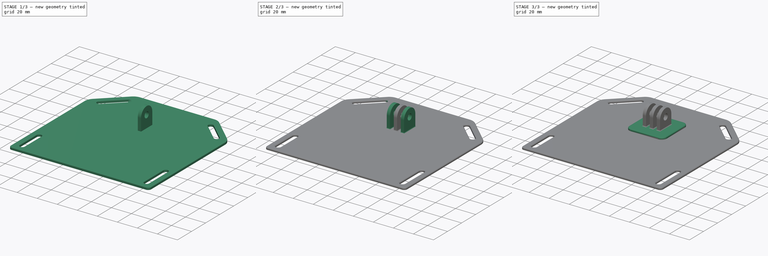
[diagram: build sequence overview — one tinted view per stage of 3, left to right]
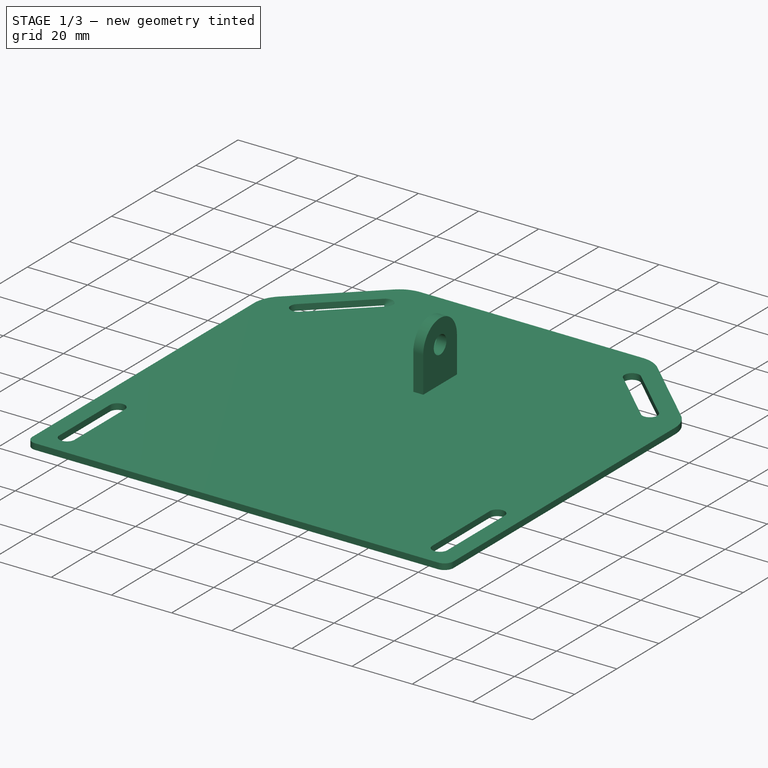
[diagram: stage 1 of 3 — iso view after this stage's code; geometry added in this stage tinted green]
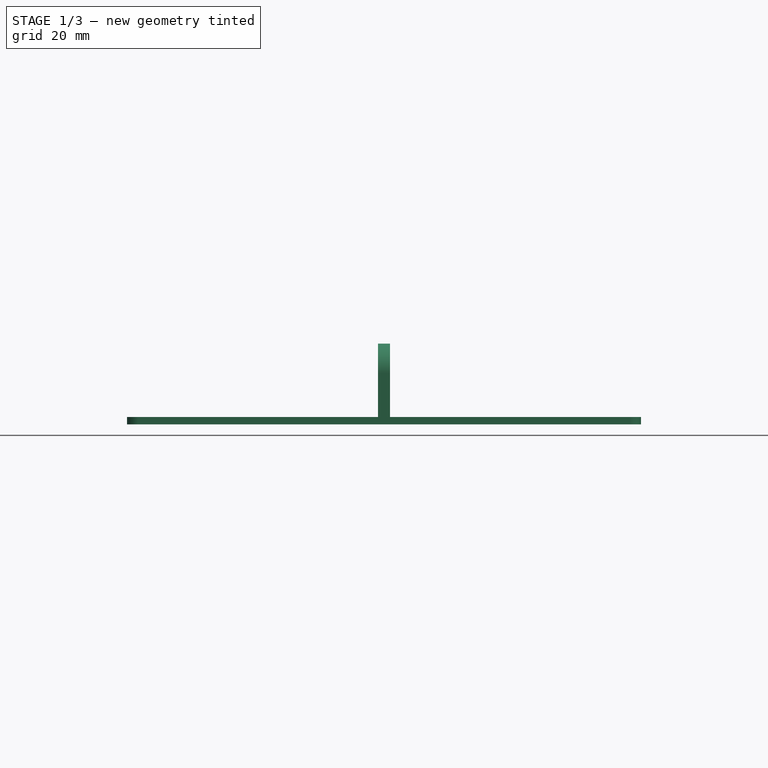
[diagram: stage 1 of 3 — front view after this stage's code; geometry added in this stage tinted green]
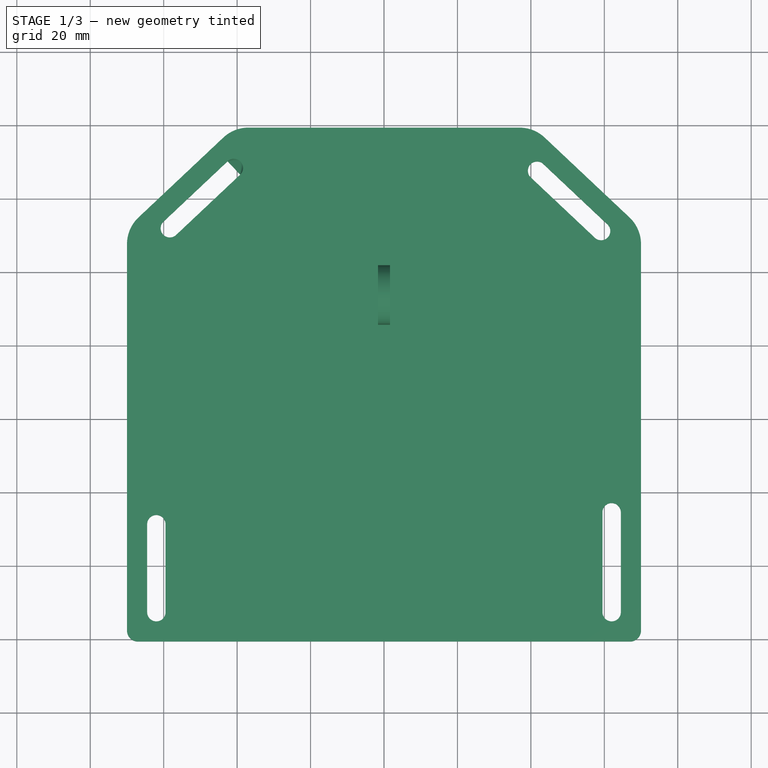
[diagram: stage 1 of 3 — top view after this stage's code; geometry added in this stage tinted green]
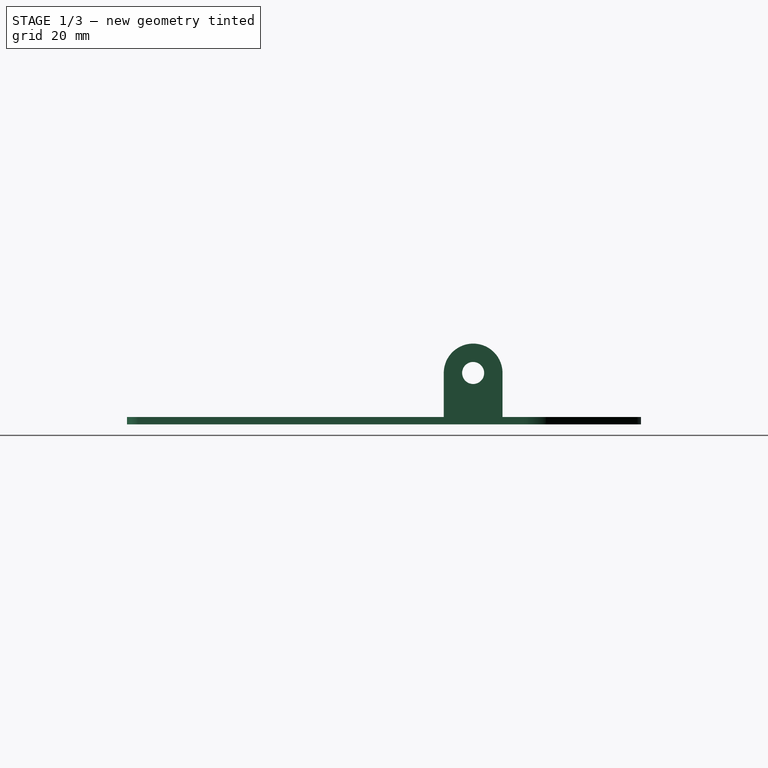
[diagram: stage 1 of 3 — right view after this stage's code; geometry added in this stage tinted green]
FCSTD DOCUMENT  (FreeCAD 0.20R25352 (Git))
Label: gopro simple chest plate
License: All rights reserved
LicenseURL: http://en.wikipedia.org/wiki/All_rights_reserved
objects: Sketcher::SketchObject×3, PartDesign::Pad×3, PartDesign::LinearPattern×2, PartDesign::Fillet×2, Spreadsheet::Sheet×1, PartDesign::Body×1
note: 16 computed .brp shape members not serialized (recipe doc carries the construction recipe); baked Part::Feature solids carry a one-line shape summary decoded from their .brp

FEATURE [Sketcher::SketchObject] Sketch
  FullyConstrained = false
  MapMode = 5
  Support = -> [XY_Plane]
  sketch-geometry (36):
    g0: LineSegment StartX=0 StartY=119.418 StartZ=0 EndX=-36.9117 EndY=119.418 EndZ=0
    g1: LineSegment StartX=-43.7672 StartY=116.698 StartZ=0 EndX=-66.8555 EndY=94.9572 EndZ=0
    g2: LineSegment StartX=-70 StartY=87.6769 StartZ=0 EndX=-70 EndY=-17.5819 EndZ=0
    g3: LineSegment StartX=-67 StartY=-20.5819 StartZ=0 EndX=0 EndY=-20.5819 EndZ=0
    g4: LineSegment StartX=0 StartY=119.418 StartZ=0 EndX=36.9117 EndY=119.418 EndZ=0
    g5: LineSegment StartX=43.7672 StartY=116.698 StartZ=0 EndX=66.8555 EndY=94.9572 EndZ=0
    g6: LineSegment StartX=70 StartY=87.6769 StartZ=0 EndX=70 EndY=-17.5819 EndZ=0
    g7: LineSegment StartX=67 StartY=-20.5819 StartZ=0 EndX=0 EndY=-20.5819 EndZ=0
    g8: ArcOfCircle CenterX=-40.8789 CenterY=108.43 CenterZ=0 NormalX=0 NormalY=0 NormalZ=1 AngleXU=0 Radius=2.5 StartAngle=5.46775 EndAngle=8.60934
    g9: ArcOfCircle CenterX=-58.3305 CenterY=91.9962 CenterZ=0 NormalX=0 NormalY=0 NormalZ=1 AngleXU=0 Radius=2.5 StartAngle=2.32615 EndAngle=5.46775
    g10: LineSegment StartX=-42.5928 StartY=110.25 StartZ=0 EndX=-60.0444 EndY=93.8162 EndZ=0
    g11: LineSegment StartX=-56.6166 StartY=90.1761 StartZ=0 EndX=-39.1651 EndY=106.609 EndZ=0
    g12: ArcOfCircle CenterX=-62 CenterY=-12.5819 CenterZ=0 NormalX=0 NormalY=0 NormalZ=1 AngleXU=0 Radius=2.5 StartAngle=3.14159 EndAngle=6.28319
    g13: ArcOfCircle CenterX=-62 CenterY=11.3892 CenterZ=0 NormalX=0 NormalY=0 NormalZ=1 AngleXU=0 Radius=2.5 StartAngle=0 EndAngle=3.14159
    g14: LineSegment StartX=-59.5 StartY=-12.5819 StartZ=0 EndX=-59.5 EndY=11.3892 EndZ=0
    g15: LineSegment StartX=-64.5 StartY=11.3892 StartZ=0 EndX=-64.5 EndY=-12.5819 EndZ=0
    g16: LineSegment StartX=57.4235 StartY=89.4163 StartZ=0 EndX=39.9719 EndY=105.85 EndZ=0
    g17: LineSegment StartX=43.3997 StartY=109.49 StartZ=0 EndX=60.8513 EndY=93.0565 EndZ=0
    g18: ArcOfCircle CenterX=41.6858 CenterY=107.67 CenterZ=0 NormalX=0 NormalY=0 NormalZ=1 AngleXU=0 Radius=2.5 StartAngle=0.815439 EndAngle=3.95703
    g19: ArcOfCircle CenterX=59.1374 CenterY=91.2364 CenterZ=0 NormalX=0 NormalY=0 NormalZ=1 AngleXU=0 Radius=2.5 StartAngle=3.95703 EndAngle=7.09862
    g20: ArcOfCircle CenterX=62 CenterY=14.6369 CenterZ=0 NormalX=0 NormalY=0 NormalZ=1 AngleXU=0 Radius=2.5 StartAngle=1e-16 EndAngle=3.14159
    g21: LineSegment StartX=64.5 StartY=14.6369 StartZ=0 EndX=64.5 EndY=-12.5819 EndZ=0
    g22: LineSegment StartX=59.5 StartY=-12.5819 StartZ=0 EndX=59.5 EndY=14.6369 EndZ=0
    g23: ArcOfCircle CenterX=62 CenterY=-12.5819 CenterZ=0 NormalX=0 NormalY=0 NormalZ=1 AngleXU=0 Radius=2.5 StartAngle=3.14159 EndAngle=6.28319
    g24: ArcOfCircle CenterX=-36.9117 CenterY=109.418 CenterZ=0 NormalX=0 NormalY=0 NormalZ=1 AngleXU=0 Radius=10 StartAngle=1.5708 EndAngle=2.32615
    g25: GeomPoint X=-40.8789 Y=119.418 Z=0
    g26: ArcOfCircle CenterX=36.9117 CenterY=109.418 CenterZ=0 NormalX=0 NormalY=0 NormalZ=1 AngleXU=0 Radius=10 StartAngle=0.815439 EndAngle=1.5708
    g27: GeomPoint X=40.8789 Y=119.418 Z=0
    g28: ArcOfCircle CenterX=60 CenterY=87.6769 CenterZ=0 NormalX=0 NormalY=0 NormalZ=1 AngleXU=0 Radius=10 StartAngle=0 EndAngle=0.815439
    g29: GeomPoint X=70 Y=91.9962 Z=0
    g30: ArcOfCircle CenterX=-60 CenterY=87.6769 CenterZ=0 NormalX=0 NormalY=0 NormalZ=1 AngleXU=0 Radius=10 StartAngle=2.32615 EndAngle=3.14159
    g31: GeomPoint X=-70 Y=91.9962 Z=0
    g32: ArcOfCircle CenterX=67 CenterY=-17.5819 CenterZ=0 NormalX=0 NormalY=0 NormalZ=1 AngleXU=0 Radius=3 StartAngle=4.71239 EndAngle=6.28319
    g33: GeomPoint X=70 Y=-20.5819 Z=0
    g34: ArcOfCircle CenterX=-67 CenterY=-17.5819 CenterZ=0 NormalX=0 NormalY=0 NormalZ=1 AngleXU=0 Radius=3 StartAngle=3.14159 EndAngle=4.71239
    g35: GeomPoint X=-70 Y=-20.5819 Z=0
  constraints (81):
    c: PointOnObject(g0,g-2)
    c: Horizontal(g0)
    c: Vertical(g2)
    c: PointOnObject(g3,g-2)
    c: Horizontal(g3)
    c: Coincident(g7,g3)
    c: Coincident(g0,g4)
    c: Symmetric(g25,g27,g-2)
    c: Symmetric(g31,g29,g-2)
    c: Symmetric(g35,g33,g-2)
    c: DistanceY(g33,g27) = 140
    c: DistanceX(g35,g33) = 140
    c: Tangent(g8,g10) = -1.5708
    c: Tangent(g10,g9) = -1.5708
    c: Tangent(g9,g11) = -1.5708
    c: Tangent(g11,g8) = -1.5708
    c: Equal(g8,g9)
    c: Distance(g31,g25) = 40
    c: Parallel(g1,g10)
    c: Distance(g8,g8) = 5
    c: Vertical(g8,g25)
    c: Horizontal(g9,g31)
    c: Tangent(g12,g14) = -1.5708
    c: Tangent(g14,g13) = -1.5708
    c: Tangent(g13,g15) = -1.5708
    c: Tangent(g15,g12) = -1.5708
    c: Equal(g12,g13)
    c: Equal(g10,g15)
    c: Equal(g8,g13)
    c: Vertical(g14)
    c: Distance(g9,g1) = 8
    c: Tangent(g18,g17) = 1.5708
    c: Tangent(g17,g19) = 1.5708
    c: Tangent(g19,g16) = 1.5708
    c: Tangent(g16,g18) = 1.5708
    c: Equal(g18,g19)
    c: Tangent(g23,g22) = 1.5708
    c: Tangent(g22,g20) = 1.5708
    c: Tangent(g20,g21) = 1.5708
    c: Tangent(g21,g23) = 1.5708
    c: Equal(g23,g20)
    c: Vertical(g22)
    c: Parallel(g17,g5)
    c: Equal(g8,g20)
    c: Distance(g23,g7) = 8
    c: Distance(g19,g5) = 8
    c: Equal(g10,g17)
    c: Equal(g18,g8)
    c: DistanceX(g35,g12) = 8
    c: DistanceX(g23,g33) = 8
    c: PointOnObject(g25,g0)
    c: PointOnObject(g25,g1)
    c: Tangent(g0,g24) = -1.5708
    c: Tangent(g1,g24) = -1.5708
    c: PointOnObject(g27,g4)
    c: PointOnObject(g27,g5)
    c: Tangent(g4,g26) = 1.5708
    c: Tangent(g5,g26) = 1.5708
    c: PointOnObject(g29,g5)
    c: PointOnObject(g29,g6)
    c: Tangent(g5,g28) = 1.5708
    c: Tangent(g6,g28) = 1.5708
    c: PointOnObject(g31,g1)
    c: PointOnObject(g31,g2)
    c: Tangent(g1,g30) = -1.5708
    c: Tangent(g2,g30) = -1.5708
    c: PointOnObject(g33,g7)
    c: PointOnObject(g33,g6)
    c: Tangent(g7,g32) = 1.5708
    c: Tangent(g6,g32) = 1.5708
    c: PointOnObject(g35,g3)
    c: PointOnObject(g35,g2)
    c: Tangent(g3,g34) = -1.5708
    c: Tangent(g2,g34) = -1.5708
    c: Equal(g34,g32)
    c: Equal(g30,g28)
    c: Equal(g26,g24)
    c: Radius(g34) = 3
    c: Distance(g12,g3) = 8
    c: Radius(g30) = 10
    c: Radius(g24) = 10
FEATURE [Spreadsheet::Sheet] Spreadsheet
  cells = A1=w; B1(w)=5; A2=w2; B2(w2)=2; A3=d; B3=66; A4=knob_d; B4(knob_d)=16; A5=x
FEATURE [Sketcher::SketchObject] Sketch003
  ExternalGeometry = -> [Sketch]
  FullyConstrained = true
  MapMode = 5
  Placement = pos=(0,0,0) rot=(0.57735,0.57735,0.57735;2.0944rad)
  Support = -> [YZ_Plane001]
  sketch-geometry (5):
    g0: LineSegment StartX=65.6984 StartY=0 StartZ=0 EndX=81.6984 EndY=0 EndZ=0
    g1: LineSegment StartX=81.6984 StartY=0 StartZ=0 EndX=81.6984 EndY=12 EndZ=0
    g2: LineSegment StartX=65.6984 StartY=12 StartZ=0 EndX=65.6984 EndY=0 EndZ=0
    g3: ArcOfCircle CenterX=73.6984 CenterY=12 CenterZ=0 NormalX=0 NormalY=0 NormalZ=1 AngleXU=0 Radius=8 StartAngle=0 EndAngle=3.14159
    g4: Circle CenterX=73.6984 CenterY=12 CenterZ=0 NormalX=0 NormalY=0 NormalZ=1 AngleXU=0 Radius=3
  constraints (15):
    c: Vertical(g2)
    c: Vertical(g1)
    c: Horizontal(g2,g1)
    c: DistanceY(g2,g2) = 12
    c: Coincident(g3,g2)
    c: Coincident(g3,g1)
    c: Coincident(g4,g3)
    c: Diameter(g4) = 6
    c: Horizontal(g0)
    c: Horizontal(g3,g2)
    c: Coincident(g2,g0)
    c: Coincident(g0,g1)
    c: PointOnObject(g0,g-1)
    c: DistanceX(g0,g0) = 16
    c: DistanceX(g0,g-4) = 35
FEATURE [PartDesign::Pad] Pad001
  Direction = (1,-2e-16,3e-16)
  Length = 3.3
  Length2 = 100
  Midplane = true
  Placement = pos=(0,0,0) rot=(0.57735,0.57735,0.57735;2.0944rad)
  Profile = -> Sketch003
  Refine = true
  Type = 0
FEATURE [PartDesign::Pad] Pad
  Direction = (0,0,1)
  Length = 2
  Length2 = 100
  Profile = -> Sketch
  Refine = true
  Reversed = true
  Type = 0
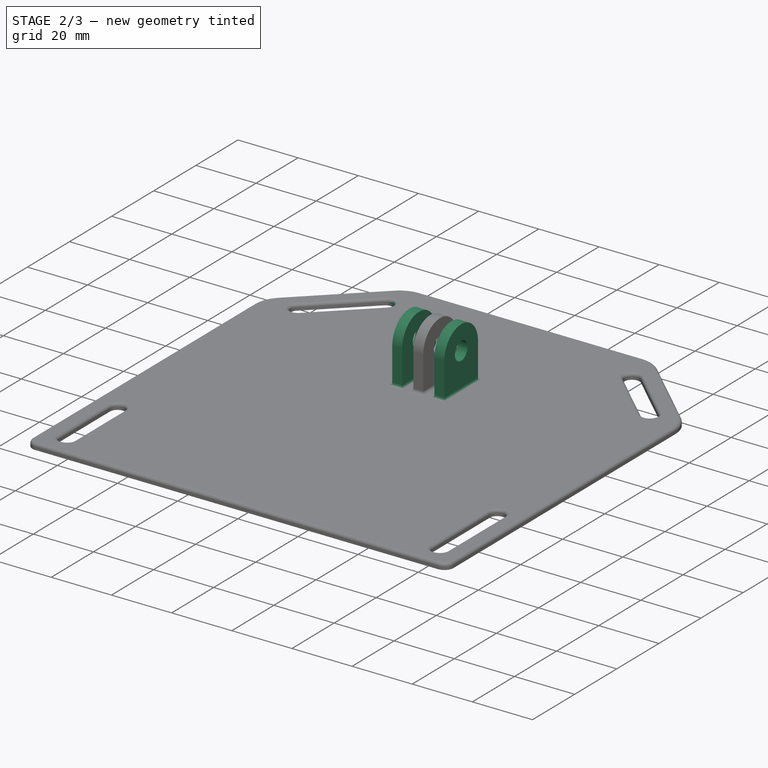
[diagram: stage 2 of 3 — iso view after this stage's code; geometry added in this stage tinted green]
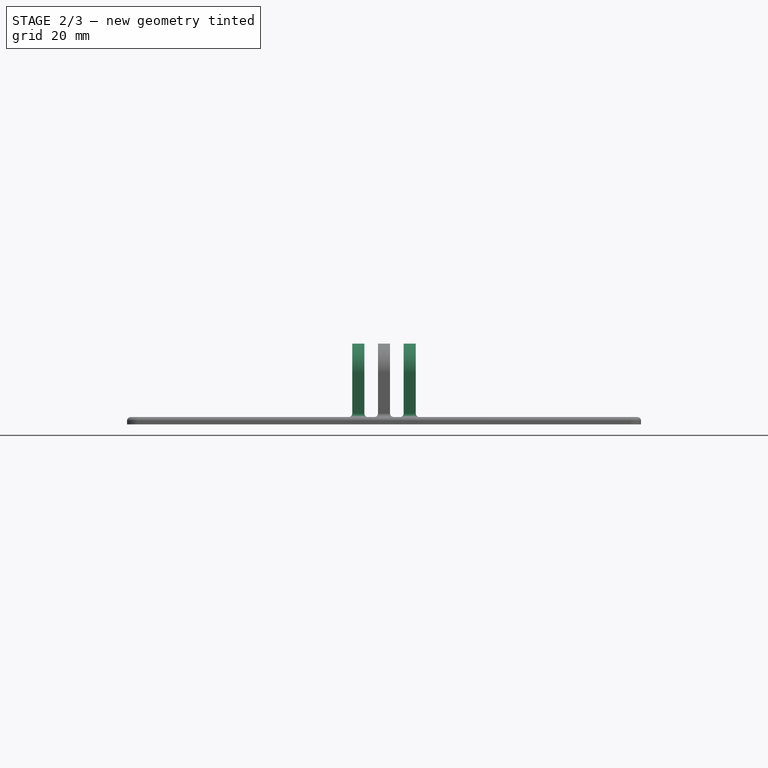
[diagram: stage 2 of 3 — front view after this stage's code; geometry added in this stage tinted green]
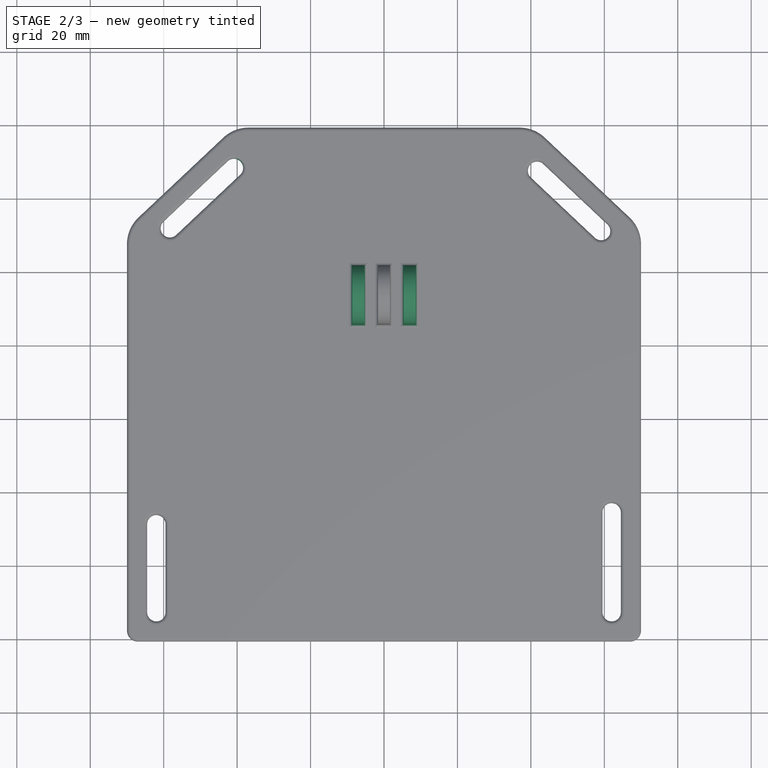
[diagram: stage 2 of 3 — top view after this stage's code; geometry added in this stage tinted green]
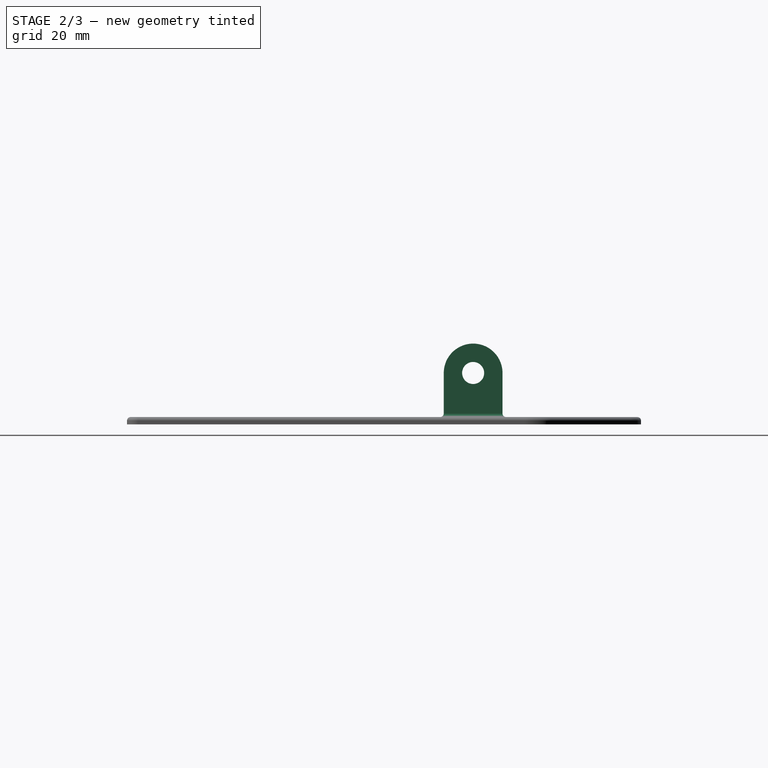
[diagram: stage 2 of 3 — right view after this stage's code; geometry added in this stage tinted green]
FEATURE [PartDesign::LinearPattern] LinearPattern
  BaseFeature = -> Pad
  Direction = -> Sketch003 [N_Axis]
  Length = 7
  Occurrences = 2
  Originals = -> [Pad001]
  Overlap = 0
  Refine = true
FEATURE [PartDesign::LinearPattern] LinearPattern001
  BaseFeature = -> LinearPattern
  Direction = -> Sketch003 [N_Axis]
  Length = 7
  Occurrences = 2
  Originals = -> [Pad001]
  Overlap = 0
  Refine = true
  Reversed = true
FEATURE [PartDesign::Fillet] Fillet
  Base = -> LinearPattern001 [Face4]
  BaseFeature = -> LinearPattern001
  Radius = 1
  Refine = true
  SupportTransform = false
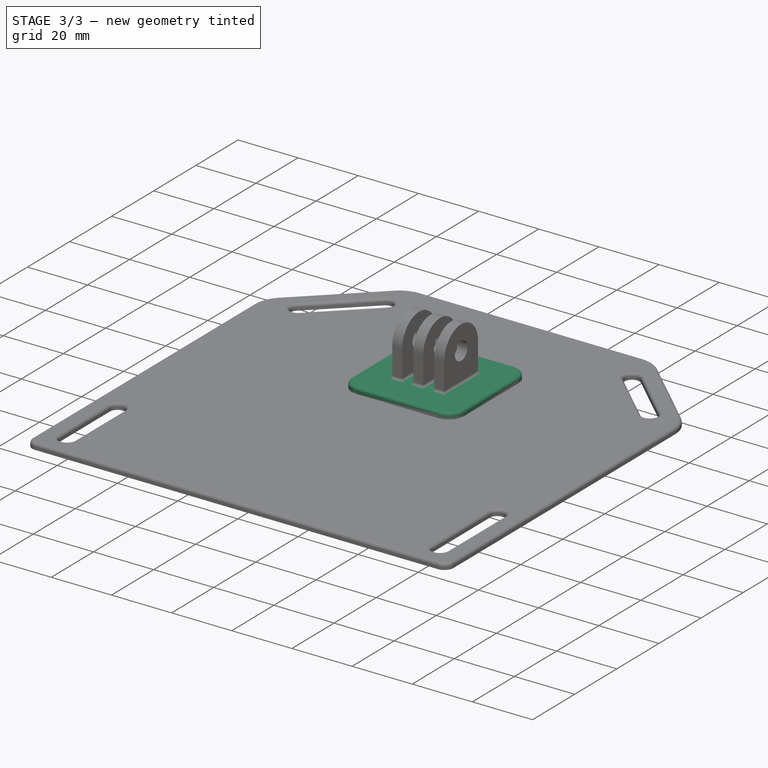
[diagram: stage 3 of 3 — iso view after this stage's code; geometry added in this stage tinted green]
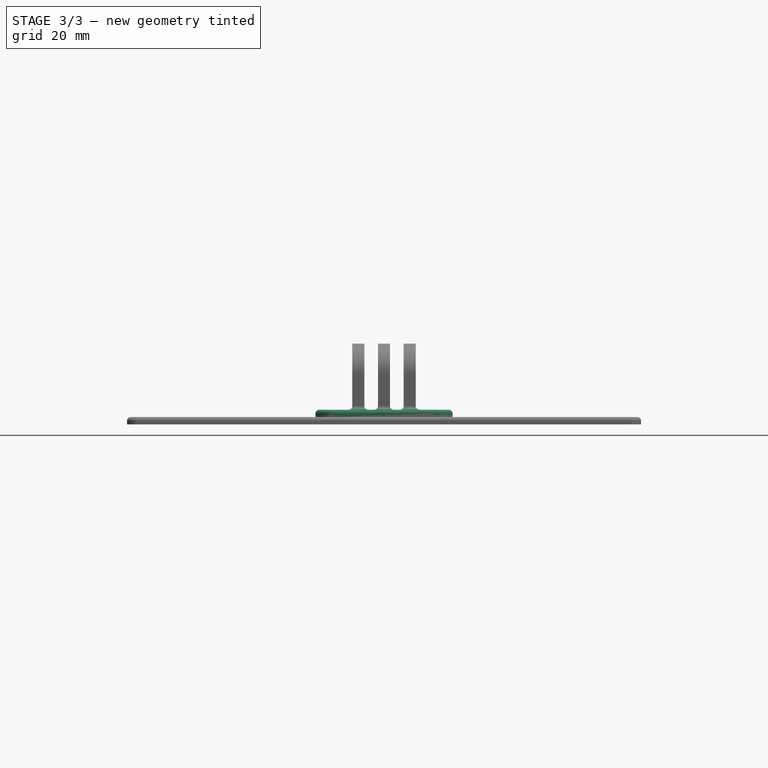
[diagram: stage 3 of 3 — front view after this stage's code; geometry added in this stage tinted green]
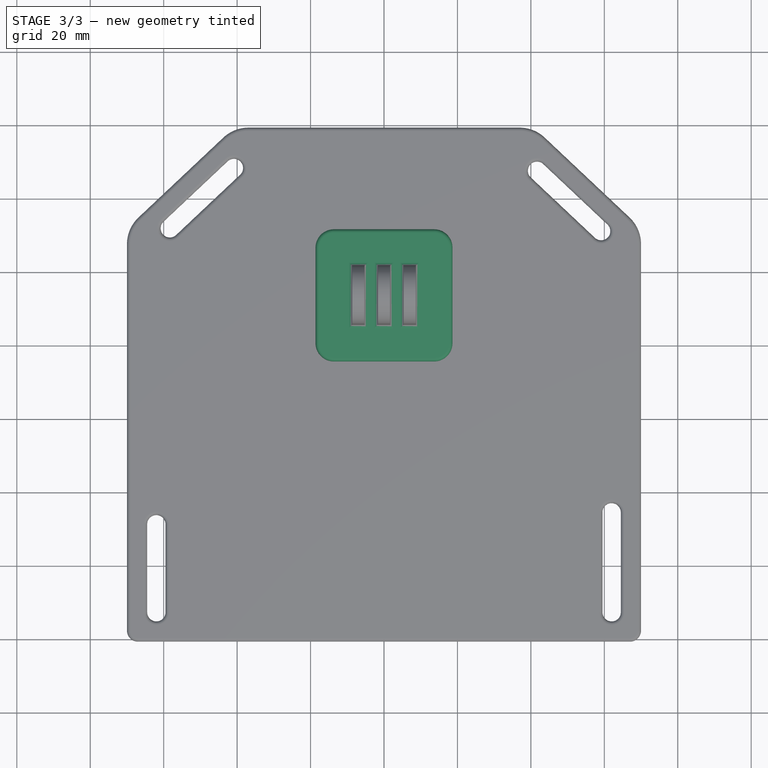
[diagram: stage 3 of 3 — top view after this stage's code; geometry added in this stage tinted green]
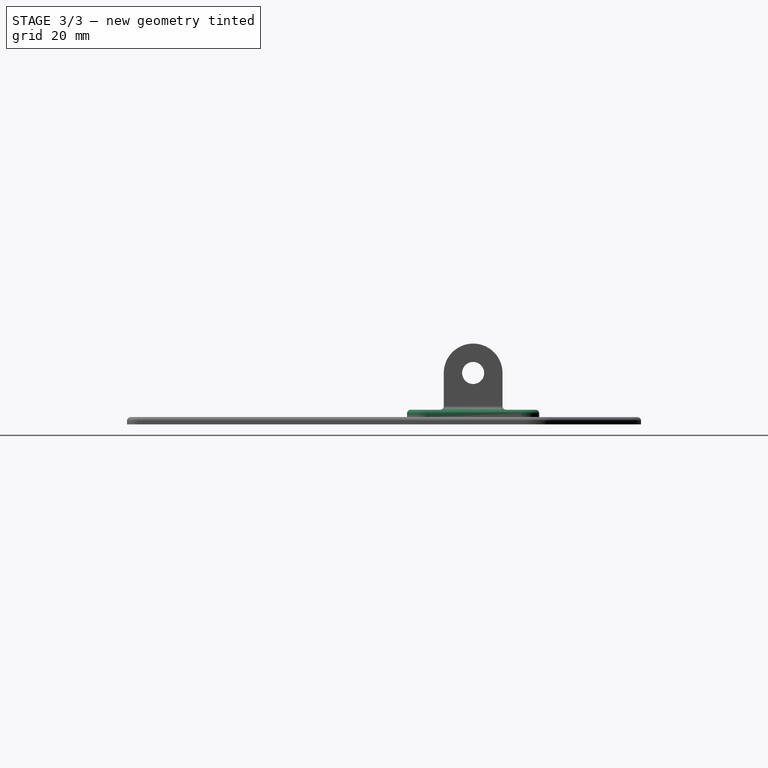
[diagram: stage 3 of 3 — right view after this stage's code; geometry added in this stage tinted green]
FEATURE [Sketcher::SketchObject] Sketch004
  ExternalGeometry = -> [Fillet]
  FullyConstrained = true
  MapMode = 5
  Support = -> [Fillet]
  sketch-geometry (12):
    g0: LineSegment StartX=-13.65 StartY=91.6984 StartZ=0 EndX=13.65 EndY=91.6984 EndZ=0
    g1: LineSegment StartX=18.65 StartY=86.6984 StartZ=0 EndX=18.65 EndY=60.6984 EndZ=0
    g2: LineSegment StartX=13.65 StartY=55.6984 StartZ=0 EndX=-13.65 EndY=55.6984 EndZ=0
    g3: LineSegment StartX=-18.65 StartY=60.6984 StartZ=0 EndX=-18.65 EndY=86.6984 EndZ=0
    g4: ArcOfCircle CenterX=13.65 CenterY=86.6984 CenterZ=0 NormalX=0 NormalY=0 NormalZ=1 AngleXU=0 Radius=5 StartAngle=8e-16 EndAngle=1.5708
    g5: GeomPoint X=18.65 Y=91.6984 Z=0
    g6: ArcOfCircle CenterX=13.65 CenterY=60.6984 CenterZ=0 NormalX=0 NormalY=0 NormalZ=1 AngleXU=0 Radius=5 StartAngle=4.71239 EndAngle=6.28319
    g7: GeomPoint X=18.65 Y=55.6984 Z=0
    g8: ArcOfCircle CenterX=-13.65 CenterY=60.6984 CenterZ=0 NormalX=0 NormalY=0 NormalZ=1 AngleXU=0 Radius=5 StartAngle=3.14159 EndAngle=4.71239
    g9: GeomPoint X=-18.65 Y=55.6984 Z=0
    g10: ArcOfCircle CenterX=-13.65 CenterY=86.6984 CenterZ=0 NormalX=0 NormalY=0 NormalZ=1 AngleXU=0 Radius=5 StartAngle=1.5708 EndAngle=3.14159
    g11: GeomPoint X=-18.65 Y=91.6984 Z=0
  constraints (27):
    c: Horizontal(g2)
    c: Vertical(g1)
    c: Vertical(g3)
    c: DistanceY(g9,g-4) = 10
    c: DistanceY(g-4,g11) = 10
    c: Symmetric(g5,g11,g-2)
    c: DistanceX(g11,g-4) = 10
    c: PointOnObject(g5,g0)
    c: PointOnObject(g5,g1)
    c: Tangent(g0,g4) = 1.5708
    c: Tangent(g1,g4) = 1.5708
    c: PointOnObject(g7,g1)
    c: PointOnObject(g7,g2)
    c: Tangent(g1,g6) = 1.5708
    c: Tangent(g2,g6) = 1.5708
    c: PointOnObject(g9,g2)
    c: PointOnObject(g9,g3)
    c: Tangent(g2,g8) = 1.5708
    c: Tangent(g3,g8) = 1.5708
    c: PointOnObject(g11,g3)
    c: PointOnObject(g11,g0)
    c: Tangent(g3,g10) = 1.5708
    c: Tangent(g0,g10) = 1.5708
    c: Equal(g10,g4)
    c: Equal(g4,g6)
    c: Equal(g6,g8)
    c: Radius(g10) = 5
FEATURE [PartDesign::Pad] Pad002
  BaseFeature = -> Fillet
  Direction = (0,0,1)
  Length = 2
  Length2 = 100
  Profile = -> Sketch004
  Refine = true
  Type = 0
FEATURE [PartDesign::Fillet] Fillet001
  Base = -> Pad002 [Face67]
  BaseFeature = -> Pad002
  Radius = 1
  Refine = true
  SupportTransform = false
FEATURE [PartDesign::Body] Body
  Group = -> [Sketch,Pad,LinearPattern,LinearPattern001,Fillet,Sketch004,Pad002,Fillet001]
  Origin = -> Origin
  Tip = -> Fillet001
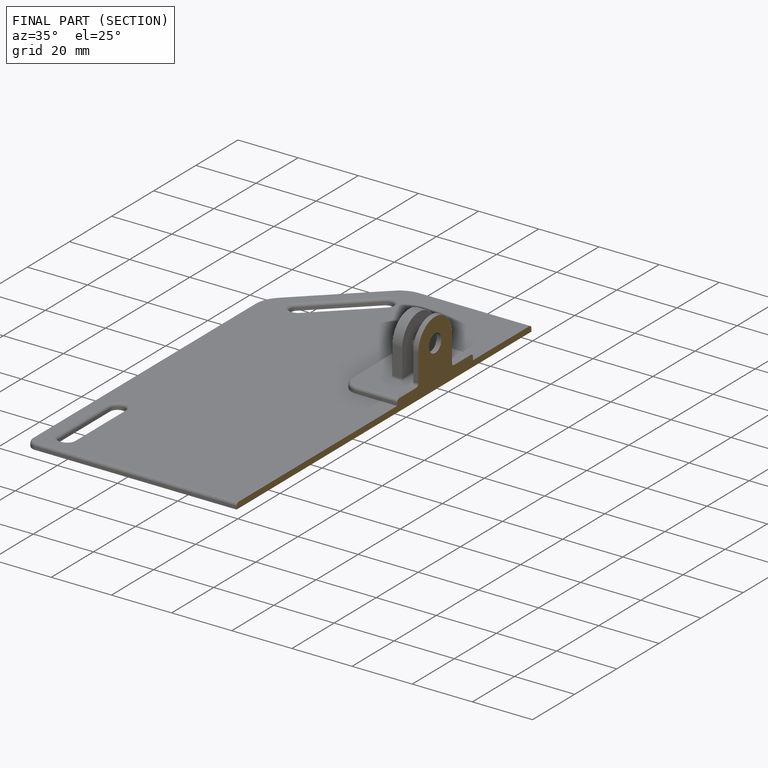
[diagram: finished part — half-section view (interior)]
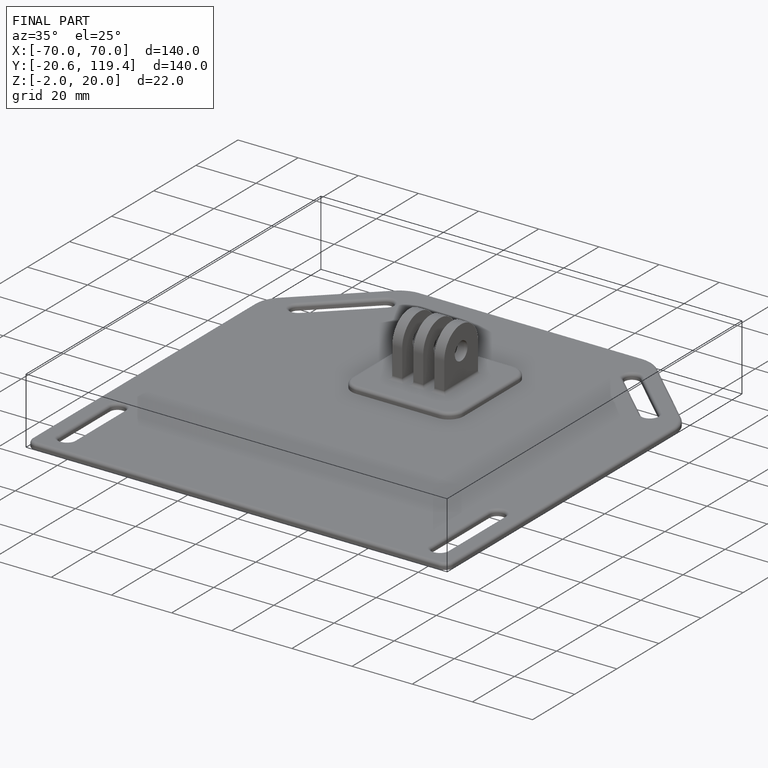
[diagram: finished part — iso view with bounding-box wireframe]
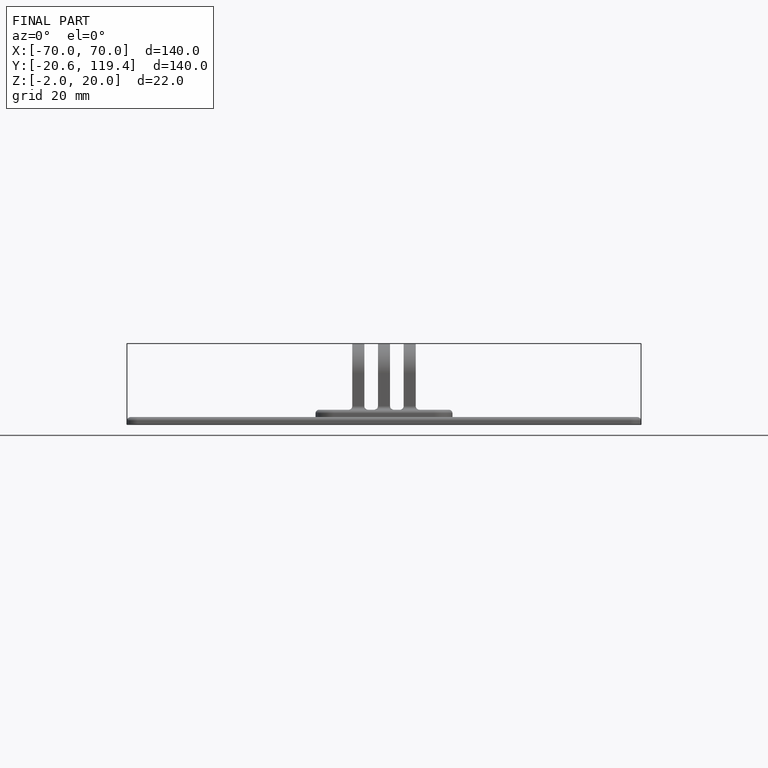
[diagram: finished part — front view with bounding-box wireframe]
